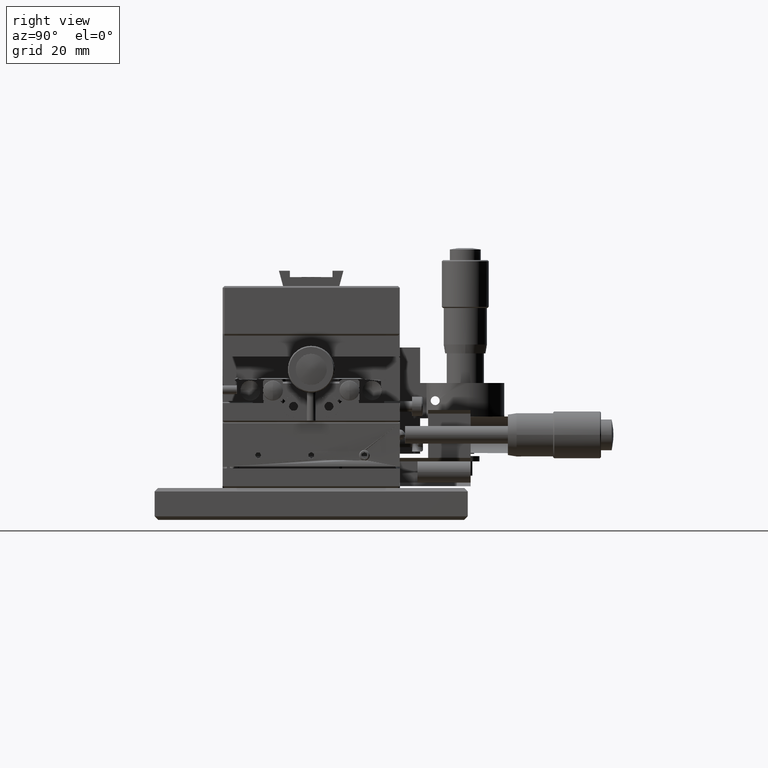
[diagram: clean part render]
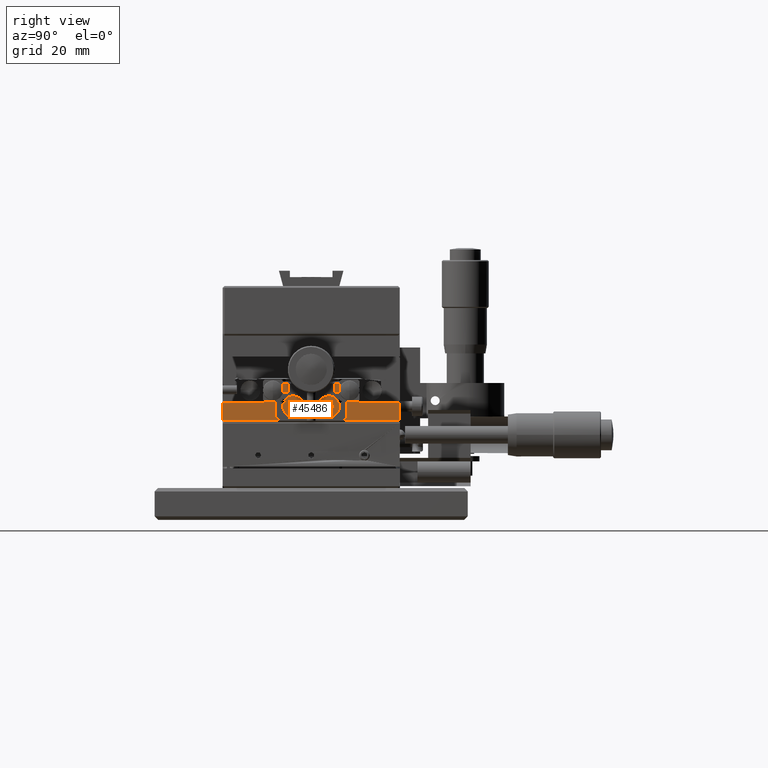
[diagram: same view with one face highlighted and labeled with its STEP entity id]
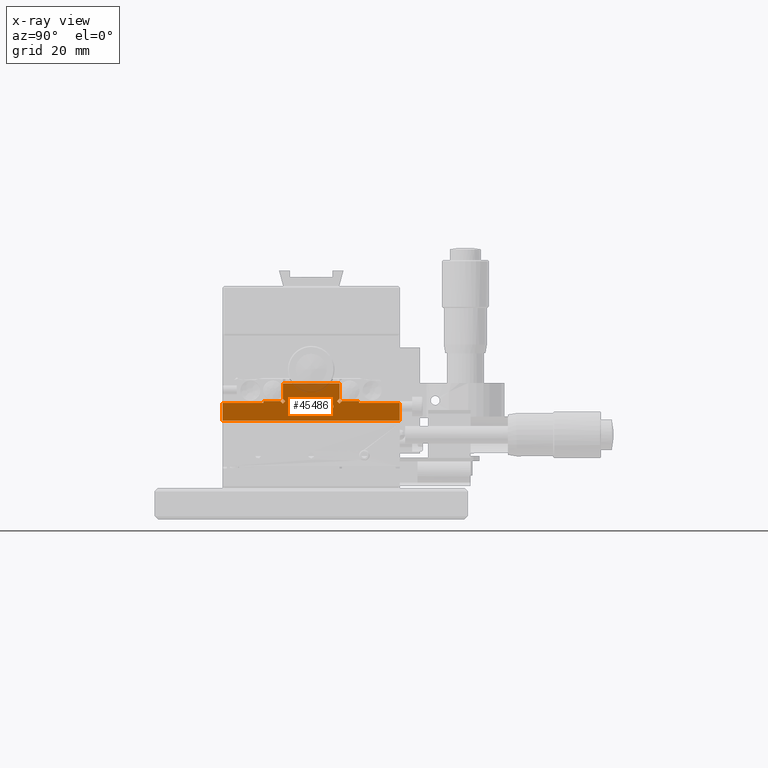
[diagram: x-ray of the same camera — body ghosted, the highlighted face saturated]
A machine part, right view. The second image highlights one B-rep face of the part: STEP entity #45486.
The next image is the same camera in x-ray: the body ghosted, the highlighted face saturated — about 6% of this face is hidden behind the body in this view.
In plain terms, the highlighted face is a freeform B-spline surface patch.
Its self-contained STEP definition (entity closure, byte-faithful):
#106 = CARTESIAN_POINT ( 'NONE',  ( 35.41923232115939868, -7.499282571865950153, 10.82812786181560050 ) ) ;
#119 = CARTESIAN_POINT ( 'NONE',  ( 35.41923232115939157, 1.738659286976996121, 10.58372311367197405 ) ) ;
#184 = CARTESIAN_POINT ( 'NONE',  ( 35.41923232115940579, -7.658430343128220130, 8.328127861815604049 ) ) ;
#359 = VERTEX_POINT ( 'NONE', #18244 ) ;
#800 = VERTEX_POINT ( 'NONE', #28666 ) ;
#803 = CARTESIAN_POINT ( 'NONE',  ( 35.41923232115941289, -7.076244450230027461, 8.401722155623858157 ) ) ;
#824 = CARTESIAN_POINT ( 'NONE',  ( 35.41923232115939868, -27.49928257186599723, 16.07812786181559872 ) ) ;
#894 = B_SPLINE_CURVE_WITH_KNOTS ( 'NONE', 1,
 ( #8955, #38469 ),
 .UNSPECIFIED., .F., .F.,
 ( 2, 2 ),
 ( 0.000000000000000000, 1.000000000000000000 ),
 .UNSPECIFIED. ) ;
#1035 = CARTESIAN_POINT ( 'NONE',  ( 35.41923232115939157, -6.676254989908567694, 10.52292401281021483 ) ) ;
#1053 = FACE_BOUND ( 'NONE', #37351, .T. ) ;
#1520 = EDGE_CURVE ( 'NONE', #35143, #35050, #40960, .T. ) ;
#2000 = CARTESIAN_POINT ( 'NONE',  ( 35.41923232115940579, 3.646563383602762887, 9.078115267141624756 ) ) ;
#2328 = CARTESIAN_POINT ( 'NONE',  ( 35.41923232115939868, -8.261340712992335966, 10.58372311370705177 ) ) ;
#2461 = CARTESIAN_POINT ( 'NONE',  ( 35.41923232115940579, 3.225132452989587062, 10.60340250617885616 ) ) ;
#2553 = CARTESIAN_POINT ( 'NONE',  ( 35.41923232115940579, -8.444078716027636489, 10.40115545059457958 ) ) ;
#2769 = VERTEX_POINT ( 'NONE', #4588 ) ;
#2783 = CARTESIAN_POINT ( 'NONE',  ( 35.41923232115940579, -8.738375440060137223, 9.381857384693326196 ) ) ;
#2922 = CARTESIAN_POINT ( 'NONE',  ( 35.41923232115939868, 3.120982298955335299, 8.479210904561897522 ) ) ;
#2930 = ORIENTED_EDGE ( 'NONE', *, *, #37316, .F. ) ;
#2985 = CARTESIAN_POINT ( 'NONE',  ( 35.41923232115939868, 5.500717428134049847, 16.07812786181559872 ) ) ;
#3132 = ORIENTED_EDGE ( 'NONE', *, *, #36155, .F. ) ;
#3323 = CARTESIAN_POINT ( 'NONE',  ( 35.41923232115939868, 6.500717428134049847, 5.578127861815599609 ) ) ;
#3401 = CARTESIAN_POINT ( 'NONE',  ( 35.41923232115939868, 1.311482124216087453, 9.192499961446900514 ) ) ;
#3468 = CARTESIAN_POINT ( 'NONE',  ( 35.41923232115939157, -8.669432750579039393, 9.138027785345336440 ) ) ;
#3591 = B_SPLINE_CURVE_WITH_KNOTS ( 'NONE', 1,
 ( #38369, #2985 ),
 .UNSPECIFIED., .F., .F.,
 ( 2, 2 ),
 ( -1.000000000000000000, 0.000000000000000000 ),
 .UNSPECIFIED. ) ;
#3619 = CARTESIAN_POINT ( 'NONE',  ( 35.41923232115941289, -7.020714457408012699, 10.73304951950429320 ) ) ;
#3631 = CARTESIAN_POINT ( 'NONE',  ( 35.41923232115940579, 1.354871472668067733, 10.07814045649536183 ) ) ;
#4081 = CARTESIAN_POINT ( 'NONE',  ( 35.41923232115939157, -6.329132393151446045, 10.01822793828443636 ) ) ;
#4096 = CARTESIAN_POINT ( 'NONE',  ( 35.41923232115939868, 2.341569656877263927, 8.328127861815602273 ) ) ;
#4229 = B_SPLINE_CURVE_WITH_KNOTS ( 'NONE', 1,
 ( #21274, #46393 ),
 .UNSPECIFIED., .F., .F.,
 ( 2, 2 ),
 ( 0.000000000000000000, 1.000000000000000000 ),
 .UNSPECIFIED. ) ;
#4277 = ORIENTED_EDGE ( 'NONE', *, *, #15784, .F. ) ;
#4559 = CARTESIAN_POINT ( 'NONE',  ( 35.41923232115940579, -7.113577302265685631, 8.388923148005030583 ) ) ;
#4588 = CARTESIAN_POINT ( 'NONE',  ( 35.41923232115939868, -7.499282571865950153, 10.82812786181560050 ) ) ;
#4589 = EDGE_CURVE ( 'NONE', #15859, #17163, #28766, .T. ) ;
#4691 = VERTEX_POINT ( 'NONE', #23889 ) ;
#4733 = ORIENTED_EDGE ( 'NONE', *, *, #33176, .F. ) ;
#5258 = CARTESIAN_POINT ( 'NONE',  ( 35.41923232115939868, 11.00071742813402054, 10.57812786181559872 ) ) ;
#5594 = CARTESIAN_POINT ( 'NONE',  ( 35.41923232115939868, 5.500717428134049847, 16.07812786181559872 ) ) ;
#5749 = CARTESIAN_POINT ( 'NONE',  ( 35.41923232115939868, 3.600825231898339140, 8.981586063020079891 ) ) ;
#5841 = CARTESIAN_POINT ( 'NONE',  ( 35.41923232115939868, -7.939382648336563264, 10.74827804052710611 ) ) ;
#5984 = CARTESIAN_POINT ( 'NONE',  ( 35.41923232115941289, 3.506312693687311466, 10.34018598927083055 ) ) ;
#6077 = CARTESIAN_POINT ( 'NONE',  ( 35.41923232115939157, -8.749210061976700814, 9.736705780390504827 ) ) ;
#6212 = CARTESIAN_POINT ( 'NONE',  ( 35.41923232115939868, 2.500717428134044962, 10.82812786181560050 ) ) ;
#6301 = CARTESIAN_POINT ( 'NONE',  ( 35.41923232115939868, -8.645128527339176472, 10.07814045648702717 ) ) ;
#6662 = CARTESIAN_POINT ( 'NONE',  ( 35.41923232115940579, 3.628812648584546885, 9.039137149472146859 ) ) ;
#6792 = B_SPLINE_CURVE_WITH_KNOTS ( 'NONE', 3,
 ( #24585, #32061, #11217, #36293 ),
 .UNSPECIFIED., .F., .F.,
 ( 4, 4 ),
 ( -1.000000000000000000, -0.000000000000000000 ),
 .UNSPECIFIED. ) ;
#7075 = EDGE_CURVE ( 'NONE', #359, #44568, #18520, .T. ) ;
#7106 = CARTESIAN_POINT ( 'NONE',  ( 35.41923232115939868, -27.49928257186595104, 5.578127861815599609 ) ) ;
#7126 = CARTESIAN_POINT ( 'NONE',  ( 35.41923232115939868, -6.353436616400943926, 9.078115267133943789 ) ) ;
#7336 = CARTESIAN_POINT ( 'NONE',  ( 35.41923232115939868, -11.49928257186589953, 5.578127861815599609 ) ) ;
#7358 = CARTESIAN_POINT ( 'NONE',  ( 35.41923232115939157, -6.493687306331045406, 10.34018598927586474 ) ) ;
#7379 = CARTESIAN_POINT ( 'NONE',  ( 35.41923232115939868, 22.50071742813399567, 5.578127861815589839 ) ) ;
#7433 = CARTESIAN_POINT ( 'NONE',  ( 35.41923232115939868, -8.322310153824419743, 8.633331710822499616 ) ) ;
#7596 = CARTESIAN_POINT ( 'NONE',  ( 35.41923232115939868, -6.399174768111996592, 8.981586062998673015 ) ) ;
#7611 = CARTESIAN_POINT ( 'NONE',  ( 35.41923232115939868, 1.401800470892460293, 8.957862990997881525 ) ) ;
#7831 = CARTESIAN_POINT ( 'NONE',  ( 35.41923232115939868, -6.249355081760533892, 9.419549943237353062 ) ) ;
#8086 = CARTESIAN_POINT ( 'NONE',  ( 35.41923232115939868, 22.50071742813399567, 16.07812786181559872 ) ) ;
#8184 = EDGE_CURVE ( 'NONE', #44864, #18097, #16612, .T. ) ;
#8561 = B_SPLINE_CURVE_WITH_KNOTS ( 'NONE', 1,
 ( #9925, #12765 ),
 .UNSPECIFIED., .F., .F.,
 ( 2, 2 ),
 ( -1.000000000000000000, 0.000000000000000000 ),
 .UNSPECIFIED. ) ;
#8642 = CARTESIAN_POINT ( 'NONE',  ( 35.41923232115939868, -27.49928257186595104, 5.578127861815599609 ) ) ;
#8955 = CARTESIAN_POINT ( 'NONE',  ( 35.41923232115939868, 11.00071742813402054, 10.57812786181559872 ) ) ;
#9480 = CARTESIAN_POINT ( 'NONE',  ( 35.41923232115939868, 3.750644918249799176, 9.419549943197155883 ) ) ;
#9570 = CARTESIAN_POINT ( 'NONE',  ( 35.41923232115939868, -8.524557204267061650, 10.30254289862509509 ) ) ;
#9707 = CARTESIAN_POINT ( 'NONE',  ( 35.41923232115940579, 2.813237995047067397, 10.79887298725827449 ) ) ;
#9798 = CARTESIAN_POINT ( 'NONE',  ( 35.41923232115939868, -7.884987841463832581, 10.76733257562612778 ) ) ;
#9925 = CARTESIAN_POINT ( 'NONE',  ( 35.41923232115939868, -15.99928257186594749, 10.57812786181559872 ) ) ;
#9993 = CARTESIAN_POINT ( 'NONE',  ( 35.41923232115939868, 22.50071742813404896, 10.57812786181559872 ) ) ;
#10125 = EDGE_CURVE ( 'NONE', #40461, #37578, #8561, .T. ) ;
#10185 = CARTESIAN_POINT ( 'NONE',  ( 35.41923232115941289, 2.022149313676101734, 8.423206204126890029 ) ) ;
#10412 = ORIENTED_EDGE ( 'NONE', *, *, #32504, .F. ) ;
#10413 = CARTESIAN_POINT ( 'NONE',  ( 35.41923232115939868, 1.261624559944387380, 9.381857384676633771 ) ) ;
#10633 = CARTESIAN_POINT ( 'NONE',  ( 35.41923232115939868, -7.302851625209658692, 8.339098439774595306 ) ) ;
#10861 = CARTESIAN_POINT ( 'NONE',  ( 35.41923232115939157, -6.260189703667267125, 9.774398338940473607 ) ) ;
#11098 = CARTESIAN_POINT ( 'NONE',  ( 35.41923232115939868, -6.344351807364209783, 9.099582722771888399 ) ) ;
#11112 = CARTESIAN_POINT ( 'NONE',  ( 35.41923232115939157, 1.400609624377413320, 10.17466966062731792 ) ) ;
#11174 = CARTESIAN_POINT ( 'NONE',  ( 35.41923232115939868, -8.223697596739571125, 8.552853217459500001 ) ) ;
#11217 = CARTESIAN_POINT ( 'NONE',  ( 35.41923232115939868, 5.972121948925063428, 10.84242560142005019 ) ) ;
#11338 = CARTESIAN_POINT ( 'NONE',  ( 35.41923232115939868, -6.371187351422110012, 9.039137149458365883 ) ) ;
#12765 = CARTESIAN_POINT ( 'NONE',  ( 35.41923232115939868, -15.99928257186599900, 11.07812786181560050 ) ) ;
#12776 = CARTESIAN_POINT ( 'NONE',  ( 35.41923232115940579, 3.445513572286114545, 8.755100273031359848 ) ) ;
#13077 = VERTEX_POINT ( 'NONE', #46151 ) ;
#13232 = CARTESIAN_POINT ( 'NONE',  ( 35.41923232115939868, 3.039708134709556919, 10.70622308804164646 ) ) ;
#13317 = CARTESIAN_POINT ( 'NONE',  ( 35.41923232115940579, -8.627377792324550043, 10.11711857415455995 ) ) ;
#13451 = CARTESIAN_POINT ( 'NONE',  ( 35.41923232115939868, 3.677140128829899712, 10.00112300055074499 ) ) ;
#13739 = CARTESIAN_POINT ( 'NONE',  ( 35.41923232115939868, -9.792175790679419123, 11.07812786181560050 ) ) ;
#13787 = CARTESIAN_POINT ( 'NONE',  ( 35.41923232115939868, -10.49928257186600078, 10.37102108062900108 ) ) ;
#13799 = B_SPLINE_CURVE_WITH_KNOTS ( 'NONE', 3,
 ( #20060, #21893, #35948, #25176, #39719, #20964, #17910, #42782, #119, #21661, #35485, #11112, #18387, #3631, #24707, #39013, #36187, #35255, #10413, #18153, #3401, #32190, #28925, #7611, #14395, #43249, #31969, #42322, #46313, #21427, #10185, #14867, #4096, #32421 ),
 .UNSPECIFIED., .F., .F.,
 ( 4, 1, 1, 2, 2, 2, 1, 1, 2, 2, 2, 1, 1, 2, 2, 2, 1, 1, 2, 2, 4 ),
 ( -1.000000000000000000, -0.9374999999999997780, -0.9062499999999997780, -0.8906249999999996669, -0.8749999999999996669, -0.7500000000000015543, -0.6875000000000024425, -0.6562500000000028866, -0.6406250000000025535, -0.6250000000000022204, -0.5000000000000014433, -0.4375000000000009992, -0.4062500000000007772, -0.3906250000000014433, -0.3750000000000019984, -0.2499999999999998890, -0.1874999999999987788, -0.1562499999999985567, -0.1406249999999983347, -0.1249999999999982236, -0.000000000000000000 ),
 .UNSPECIFIED. ) ;
#13814 = CARTESIAN_POINT ( 'NONE',  ( 35.41923232115939868, 5.500717428134049847, 10.37102108062900108 ) ) ;
#14232 = CARTESIAN_POINT ( 'NONE',  ( 35.41923232115940579, -8.598199529113252026, 8.957862991005779207 ) ) ;
#14289 = ORIENTED_EDGE ( 'NONE', *, *, #8184, .F. ) ;
#14383 = CARTESIAN_POINT ( 'NONE',  ( 35.41923232115939157, -7.340134800608900001, 10.82812786181559517 ) ) ;
#14395 = CARTESIAN_POINT ( 'NONE',  ( 35.41923232115939868, 1.495122162593977899, 8.816069734357496301 ) ) ;
#14460 = CARTESIAN_POINT ( 'NONE',  ( 35.41923232115939157, -8.504877837398389318, 8.816069734352073084 ) ) ;
#14498 = CARTESIAN_POINT ( 'NONE',  ( 35.41923232115939868, -10.49928257186600078, 11.78523464300210044 ) ) ;
#14635 = FACE_OUTER_BOUND ( 'NONE', #26664, .T. ) ;
#14692 = EDGE_CURVE ( 'NONE', #31257, #39233, #17221, .T. ) ;
#14732 = CARTESIAN_POINT ( 'NONE',  ( 35.41923232115939868, 4.793610646947500165, 11.07812786181560050 ) ) ;
#14867 = CARTESIAN_POINT ( 'NONE',  ( 35.41923232115941289, 2.188196861226500367, 8.357382736372924725 ) ) ;
#15027 = CARTESIAN_POINT ( 'NONE',  ( 35.41923232115939868, -10.49928257186600078, 11.78523464300210044 ) ) ;
#15784 = EDGE_CURVE ( 'NONE', #18097, #17409, #894, .T. ) ;
#15837 = EDGE_LOOP ( 'NONE', ( #25946, #30800 ) ) ;
#15859 = VERTEX_POINT ( 'NONE', #46227 ) ;
#16109 = CARTESIAN_POINT ( 'NONE',  ( 35.41923232115939868, -10.49928257186600078, 11.78523464300210044 ) ) ;
#16275 = CARTESIAN_POINT ( 'NONE',  ( 35.41923232115939157, 3.750753683076100575, 9.657416821124765960 ) ) ;
#16404 = CARTESIAN_POINT ( 'NONE',  ( 35.41923232115939868, 22.50071742813404896, 10.57812786181559872 ) ) ;
#16510 = CARTESIAN_POINT ( 'NONE',  ( 35.41923232115939868, 2.886422697732197840, 8.388923148005032360 ) ) ;
#16534 = CARTESIAN_POINT ( 'NONE',  ( 35.41923232115939868, -15.99928257186599900, 11.07812786181560050 ) ) ;
#16612 = B_SPLINE_CURVE_WITH_KNOTS ( 'NONE', 1,
 ( #30331, #27289 ),
 .UNSPECIFIED., .F., .F.,
 ( 2, 2 ),
 ( 0.000000000000000000, 1.000000000000000000 ),
 .UNSPECIFIED. ) ;
#16825 = CARTESIAN_POINT ( 'NONE',  ( 35.41923232115939868, -8.654213336367091003, 10.05667300086593841 ) ) ;
#16851 = CARTESIAN_POINT ( 'NONE',  ( 35.41923232115939868, 2.500717428134044962, 10.82812786181560050 ) ) ;
#16981 = VERTEX_POINT ( 'NONE', #20790 ) ;
#17064 = CARTESIAN_POINT ( 'NONE',  ( 35.41923232115939868, -11.20638935305249895, 11.07812786181560050 ) ) ;
#17163 = VERTEX_POINT ( 'NONE', #27250 ) ;
#17221 = B_SPLINE_CURVE_WITH_KNOTS ( 'NONE', 1,
 ( #7336, #7106 ),
 .UNSPECIFIED., .F., .F.,
 ( 2, 2 ),
 ( 0.6799999999999999378, 1.000000000000000000 ),
 .UNSPECIFIED. ) ;
#17349 = EDGE_CURVE ( 'NONE', #16981, #35050, #42689, .T. ) ;
#17409 = VERTEX_POINT ( 'NONE', #16404 ) ;
#17544 = CARTESIAN_POINT ( 'NONE',  ( 35.41923232115939868, -10.02787805107493213, 11.31383012221109574 ) ) ;
#17572 = VERTEX_POINT ( 'NONE', #26676 ) ;
#17575 = EDGE_CURVE ( 'NONE', #39233, #41138, #30372, .T. ) ;
#17619 = ORIENTED_EDGE ( 'NONE', *, *, #14692, .F. ) ;
#17895 = CARTESIAN_POINT ( 'NONE',  ( 35.41923232115939868, -7.186762004958090699, 10.79887298725827094 ) ) ;
#17910 = CARTESIAN_POINT ( 'NONE',  ( 35.41923232115940579, 2.060617351662556107, 10.74827804052677038 ) ) ;
#18013 = CARTESIAN_POINT ( 'NONE',  ( 35.41923232115939868, 5.265015167738500423, 11.54953238260658921 ) ) ;
#18097 = VERTEX_POINT ( 'NONE', #5258 ) ;
#18153 = CARTESIAN_POINT ( 'NONE',  ( 35.41923232115939157, 1.293637940528613584, 9.248794809126078320 ) ) ;
#18244 = CARTESIAN_POINT ( 'NONE',  ( 35.41923232115939868, -11.20638935305249895, 11.07812786181560050 ) ) ;
#18372 = B_SPLINE_CURVE_WITH_KNOTS ( 'NONE', 3,
 ( #24095, #45227, #34861, #41476, #9798, #38394, #5841, #20126, #2328, #2553, #9570, #34407, #13317, #6301, #16825, #38168, #6077, #31121, #2783, #21489, #43307, #25710, #3468, #14232, #14460, #7433, #11174, #18453, #28522, #42619, #25475, #39076, #184, #28984 ),
 .UNSPECIFIED., .F., .F.,
 ( 4, 1, 1, 2, 2, 2, 1, 1, 2, 2, 2, 1, 1, 2, 2, 2, 1, 1, 2, 2, 4 ),
 ( -1.000000000000000000, -0.9374999999999994449, -0.9062499999999994449, -0.8906249999999996669, -0.8750000000000000000, -0.7500000000000071054, -0.6875000000000111022, -0.6562500000000133227, -0.6406250000000140998, -0.6250000000000148770, -0.5000000000000131006, -0.4375000000000128786, -0.4062500000000121014, -0.3906250000000114353, -0.3750000000000108802, -0.2500000000000062172, -0.1875000000000038858, -0.1562500000000021094, -0.1406250000000015543, -0.1250000000000009992, -0.000000000000000000 ),
 .UNSPECIFIED. ) ;
#18387 = CARTESIAN_POINT ( 'NONE',  ( 35.41923232115940579, 1.372622207688471985, 10.11711857416946891 ) ) ;
#18423 = B_SPLINE_SURFACE_WITH_KNOTS ( 'NONE', 1, 1, ( 
 ( #824, #8086 ),
 ( #21899, #7379 ) ),
 .UNSPECIFIED., .F., .F., .F.,
 ( 2, 2 ),
 ( 2, 2 ),
 ( 0.000000000000000000, 1.000000000000000000 ),
 ( 0.000000000000000000, 1.000000000000000000 ),
 .UNSPECIFIED. ) ;
#18453 = CARTESIAN_POINT ( 'NONE',  ( 35.41923232115940579, -8.095824361702646854, 8.478020049072476638 ) ) ;
#18520 = B_SPLINE_CURVE_WITH_KNOTS ( 'NONE', 3,
 ( #17064, #41714, #31589, #45931 ),
 .UNSPECIFIED., .F., .F.,
 ( 4, 4 ),
 ( -1.000000000000000000, -0.000000000000000000 ),
 .UNSPECIFIED. ) ;
#19557 = ORIENTED_EDGE ( 'NONE', *, *, #42033, .F. ) ;
#19600 = ORIENTED_EDGE ( 'NONE', *, *, #10125, .F. ) ;
#19885 = CARTESIAN_POINT ( 'NONE',  ( 35.41923232115939868, -7.499282571865950153, 8.328127861815598720 ) ) ;
#20060 = CARTESIAN_POINT ( 'NONE',  ( 35.41923232115939868, 2.500717428134044962, 10.82812786181560050 ) ) ;
#20126 = CARTESIAN_POINT ( 'NONE',  ( 35.41923232115941289, -8.119547442672425674, 10.67704481907537151 ) ) ;
#20790 = CARTESIAN_POINT ( 'NONE',  ( 35.41923232115939868, -10.49928257186594038, 16.07812786181559872 ) ) ;
#20964 = CARTESIAN_POINT ( 'NONE',  ( 35.41923232115940579, 2.077679306499451872, 10.75453356800730909 ) ) ;
#21274 = CARTESIAN_POINT ( 'NONE',  ( 35.41923232115939868, -27.49928257186599723, 10.57812786181559872 ) ) ;
#21427 = CARTESIAN_POINT ( 'NONE',  ( 35.41923232115940579, 2.000704836661403530, 8.432281903138919787 ) ) ;
#21489 = CARTESIAN_POINT ( 'NONE',  ( 35.41923232115939868, -8.706362059474738402, 9.248794809138574990 ) ) ;
#21537 = CARTESIAN_POINT ( 'NONE',  ( 35.41923232115939868, 6.207824209320599529, 11.07812786181560050 ) ) ;
#21647 = CARTESIAN_POINT ( 'NONE',  ( 35.41923232115939868, -6.278610300927642385, 9.265423491593580252 ) ) ;
#21655 = ORIENTED_EDGE ( 'NONE', *, *, #42015, .F. ) ;
#21661 = CARTESIAN_POINT ( 'NONE',  ( 35.41923232115939868, 1.555921283987849568, 10.40115545061218150 ) ) ;
#21879 = CARTESIAN_POINT ( 'NONE',  ( 35.41923232115939868, -6.554486427721785802, 8.755100273015044010 ) ) ;
#21893 = CARTESIAN_POINT ( 'NONE',  ( 35.41923232115939868, 2.421336771972731672, 10.82812786181559339 ) ) ;
#21899 = CARTESIAN_POINT ( 'NONE',  ( 35.41923232115939868, -27.49928257186599723, 5.578127861815589839 ) ) ;
#22111 = CARTESIAN_POINT ( 'NONE',  ( 35.41923232115940579, -6.902740782030706512, 10.67823567456075651 ) ) ;
#22201 = ORIENTED_EDGE ( 'NONE', *, *, #45219, .F. ) ;
#22263 = B_SPLINE_CURVE_WITH_KNOTS ( 'NONE', 3,
 ( #19885, #36173, #10633, #29604, #4559, #803, #25400, #22348, #39705, #21879, #32888, #7596, #11338, #7126, #11098, #21647, #7831, #43472, #10861, #28912, #25637, #35706, #4081, #32176, #7358, #1035, #40170, #22111, #36644, #25161, #3619, #17895, #14383, #106 ),
 .UNSPECIFIED., .F., .F.,
 ( 4, 1, 1, 2, 2, 2, 1, 1, 2, 2, 2, 1, 1, 2, 2, 2, 1, 1, 2, 2, 4 ),
 ( -1.000000000000000000, -0.9374999999999953371, -0.9062499999999932276, -0.8906249999999926725, -0.8749999999999922284, -0.7499999999999893419, -0.6874999999999880096, -0.6562499999999876765, -0.6406249999999871214, -0.6249999999999864553, -0.4999999999999832356, -0.4374999999999809042, -0.4062499999999804601, -0.3906249999999809042, -0.3749999999999813483, -0.2499999999999875655, -0.1874999999999902300, -0.1562499999999914513, -0.1406249999999924505, -0.1249999999999934497, -0.000000000000000000 ),
 .UNSPECIFIED. ) ;
#22348 = CARTESIAN_POINT ( 'NONE',  ( 35.41923232115940579, -6.879017701069110480, 8.479210904554406625 ) ) ;
#23167 = CARTESIAN_POINT ( 'NONE',  ( 35.41923232115939868, -27.49928257186595104, 5.578127861815599609 ) ) ;
#23777 = CARTESIAN_POINT ( 'NONE',  ( 35.41923232115939868, 3.739810296323685890, 9.774398338975711198 ) ) ;
#23889 = CARTESIAN_POINT ( 'NONE',  ( 35.41923232115939868, 2.500717428134044962, 8.328127861815598720 ) ) ;
#24008 = CARTESIAN_POINT ( 'NONE',  ( 35.41923232115938447, 2.659865199396264757, 10.82812786181559161 ) ) ;
#24095 = CARTESIAN_POINT ( 'NONE',  ( 35.41923232115939868, -7.499282571865950153, 10.82812786181560050 ) ) ;
#24438 = CARTESIAN_POINT ( 'NONE',  ( 35.41923232115939868, 6.207824209320599529, 11.07812786181560050 ) ) ;
#24582 = CARTESIAN_POINT ( 'NONE',  ( 35.41923232115939868, 5.500717428134040077, 11.78523464300210044 ) ) ;
#24583 = CARTESIAN_POINT ( 'NONE',  ( 35.41923232115939868, -9.792175790679419123, 11.07812786181560050 ) ) ;
#24585 = CARTESIAN_POINT ( 'NONE',  ( 35.41923232115939868, 5.500717428134049847, 10.37102108062900108 ) ) ;
#24707 = CARTESIAN_POINT ( 'NONE',  ( 35.41923232115939868, 1.345786663633576907, 10.05667300086281024 ) ) ;
#24893 = CARTESIAN_POINT ( 'NONE',  ( 35.41923232115939868, 11.00071742813404008, 11.07812786181560050 ) ) ;
#25161 = CARTESIAN_POINT ( 'NONE',  ( 35.41923232115939868, -6.999269980392057278, 10.72397382049174652 ) ) ;
#25176 = CARTESIAN_POINT ( 'NONE',  ( 35.41923232115940579, 2.171264023310276237, 10.78515976480951899 ) ) ;
#25400 = CARTESIAN_POINT ( 'NONE',  ( 35.41923232115939868, -7.059182495394191292, 8.407977683104203237 ) ) ;
#25475 = CARTESIAN_POINT ( 'NONE',  ( 35.41923232115939868, -7.977850686323135321, 8.423206204126863383 ) ) ;
#25637 = CARTESIAN_POINT ( 'NONE',  ( 35.41923232115939868, -6.310047267943633464, 9.963755762177486375 ) ) ;
#25710 = CARTESIAN_POINT ( 'NONE',  ( 35.41923232115939868, -8.675705272562968418, 9.155132723090494196 ) ) ;
#25946 = ORIENTED_EDGE ( 'NONE', *, *, #25966, .F. ) ;
#25966 = EDGE_CURVE ( 'NONE', #17572, #2769, #22263, .T. ) ;
#26119 = FACE_BOUND ( 'NONE', #15837, .T. ) ;
#26628 = CARTESIAN_POINT ( 'NONE',  ( 35.41923232115939868, -11.20638935305249895, 11.07812786181560050 ) ) ;
#26645 = B_SPLINE_CURVE_WITH_KNOTS ( 'NONE', 1,
 ( #37650, #26628 ),
 .UNSPECIFIED., .F., .F.,
 ( 2, 2 ),
 ( 0.000000000000000000, 1.000000000000000000 ),
 .UNSPECIFIED. ) ;
#26664 = EDGE_LOOP ( 'NONE', ( #3132, #33701, #21655, #29382, #40295, #2930, #45103, #4733, #19600, #22201, #41517, #17619, #41640, #27008, #19557, #4277, #14289, #43322, #35892, #39122 ) ) ;
#26676 = CARTESIAN_POINT ( 'NONE',  ( 35.41923232115939868, -7.499282571865950153, 8.328127861815598720 ) ) ;
#26768 = CARTESIAN_POINT ( 'NONE',  ( 35.41923232115939868, 5.500717428134049847, 16.07812786181559872 ) ) ;
#26938 = CARTESIAN_POINT ( 'NONE',  ( 35.41923232115939868, 22.50071742813409870, 5.578127861815599609 ) ) ;
#27008 = ORIENTED_EDGE ( 'NONE', *, *, #4589, .F. ) ;
#27054 = CARTESIAN_POINT ( 'NONE',  ( 35.41923232115940579, 3.707796915739476784, 9.907460914520976658 ) ) ;
#27067 = CARTESIAN_POINT ( 'NONE',  ( 35.41923232115939868, -11.49928257186589953, 5.578127861815599609 ) ) ;
#27106 = EDGE_CURVE ( 'NONE', #45635, #13077, #29392, .T. ) ;
#27138 = CARTESIAN_POINT ( 'NONE',  ( 35.41923232115939868, 5.500717428134040077, 11.78523464300210044 ) ) ;
#27250 = CARTESIAN_POINT ( 'NONE',  ( 35.41923232115939868, 6.500717428134049847, 5.578127861815599609 ) ) ;
#27289 = CARTESIAN_POINT ( 'NONE',  ( 35.41923232115939868, 11.00071742813402054, 10.57812786181559872 ) ) ;
#27292 = CARTESIAN_POINT ( 'NONE',  ( 35.41923232115939868, 2.500717428134044962, 8.328127861815598720 ) ) ;
#27514 = CARTESIAN_POINT ( 'NONE',  ( 35.41923232115939868, 3.000730019603612408, 10.72397382049294379 ) ) ;
#27753 = CARTESIAN_POINT ( 'NONE',  ( 35.41923232115939868, 3.721389699082764846, 9.265423491626370023 ) ) ;
#28109 = CARTESIAN_POINT ( 'NONE',  ( 35.41923232115939868, 4.793610646947500165, 11.07812786181560050 ) ) ;
#28265 = CARTESIAN_POINT ( 'NONE',  ( 35.41923232115939868, 22.50071742813409870, 5.578127861815599609 ) ) ;
#28522 = CARTESIAN_POINT ( 'NONE',  ( 35.41923232115939868, -8.038273278450130732, 8.450032635592991781 ) ) ;
#28666 = CARTESIAN_POINT ( 'NONE',  ( 35.41923232115939868, 5.500717428134040077, 11.78523464300210044 ) ) ;
#28766 = B_SPLINE_CURVE_WITH_KNOTS ( 'NONE', 1,
 ( #26938, #44781 ),
 .UNSPECIFIED., .F., .F.,
 ( 2, 2 ),
 ( 0.000000000000000000, 0.3199999999999999512 ),
 .UNSPECIFIED. ) ;
#28912 = CARTESIAN_POINT ( 'NONE',  ( 35.41923232115939868, -6.292203084253753964, 9.907460914494549797 ) ) ;
#28925 = CARTESIAN_POINT ( 'NONE',  ( 35.41923232115939868, 1.330567249420185671, 9.138027785346444887 ) ) ;
#28984 = CARTESIAN_POINT ( 'NONE',  ( 35.41923232115939868, -7.499282571865950153, 8.328127861815598720 ) ) ;
#29360 = EDGE_CURVE ( 'NONE', #17163, #31257, #33157, .T. ) ;
#29382 = ORIENTED_EDGE ( 'NONE', *, *, #17349, .T. ) ;
#29384 = ORIENTED_EDGE ( 'NONE', *, *, #41024, .F. ) ;
#29392 = B_SPLINE_CURVE_WITH_KNOTS ( 'NONE', 1,
 ( #28109, #13814 ),
 .UNSPECIFIED., .F., .F.,
 ( 2, 2 ),
 ( 0.000000000000000000, 1.000000000000000000 ),
 .UNSPECIFIED. ) ;
#29498 = VERTEX_POINT ( 'NONE', #16851 ) ;
#29604 = CARTESIAN_POINT ( 'NONE',  ( 35.41923232115939868, -7.169829167038427542, 8.371095958821657135 ) ) ;
#30331 = CARTESIAN_POINT ( 'NONE',  ( 35.41923232115939868, 11.00071742813404008, 11.07812786181560050 ) ) ;
#30372 = B_SPLINE_CURVE_WITH_KNOTS ( 'NONE', 1,
 ( #8642, #44511 ),
 .UNSPECIFIED., .F., .F.,
 ( 2, 2 ),
 ( -1.000000000000000000, 0.000000000000000000 ),
 .UNSPECIFIED. ) ;
#30799 = CARTESIAN_POINT ( 'NONE',  ( 35.41923232115939868, 3.655648192634517457, 9.099582722767848963 ) ) ;
#30800 = ORIENTED_EDGE ( 'NONE', *, *, #40274, .F. ) ;
#31023 = CARTESIAN_POINT ( 'NONE',  ( 35.41923232115939868, 3.097259217957206268, 10.67823567456408895 ) ) ;
#31121 = CARTESIAN_POINT ( 'NONE',  ( 35.41923232115939868, -8.749318826810654315, 9.498838902527994676 ) ) ;
#31257 = VERTEX_POINT ( 'NONE', #27067 ) ;
#31589 = CARTESIAN_POINT ( 'NONE',  ( 35.41923232115939868, -10.73498483226149780, 10.60672334102453362 ) ) ;
#31832 = CARTESIAN_POINT ( 'NONE',  ( 35.41923232115939868, -10.26358031147046290, 11.54953238260659631 ) ) ;
#31969 = CARTESIAN_POINT ( 'NONE',  ( 35.41923232115939868, 1.776302403266961649, 8.552853217454847723 ) ) ;
#32061 = CARTESIAN_POINT ( 'NONE',  ( 35.41923232115939868, 5.736419688529532657, 10.60672334102452652 ) ) ;
#32176 = CARTESIAN_POINT ( 'NONE',  ( 35.41923232115939157, -6.400365614629536459, 10.19839273263546708 ) ) ;
#32190 = CARTESIAN_POINT ( 'NONE',  ( 35.41923232115940579, 1.324294727438194430, 9.155132723086104818 ) ) ;
#32200 = B_SPLINE_CURVE_WITH_KNOTS ( 'NONE', 3,
 ( #27292, #41612, #34999, #38532, #16510, #42293, #45582, #2922, #45363, #12776, #38760, #5749, #6662, #2000, #30799, #27753, #9480, #16275, #23777, #27054, #45134, #13451, #38084, #41383, #5984, #34546, #2461, #31023, #13232, #27514, #41839, #9707, #24008, #6212 ),
 .UNSPECIFIED., .F., .F.,
 ( 4, 1, 1, 2, 2, 2, 1, 1, 2, 2, 2, 1, 1, 2, 2, 2, 1, 1, 2, 2, 4 ),
 ( -1.000000000000000000, -0.9374999999999991118, -0.9062499999999984457, -0.8906249999999982236, -0.8749999999999981126, -0.7499999999999982236, -0.6874999999999983347, -0.6562499999999980016, -0.6406249999999977796, -0.6249999999999975575, -0.4999999999999963363, -0.4374999999999956701, -0.4062499999999953371, -0.3906249999999958922, -0.3749999999999963363, -0.2499999999999956701, -0.1874999999999958922, -0.1562499999999960032, -0.1406249999999962252, -0.1249999999999964473, -0.000000000000000000 ),
 .UNSPECIFIED. ) ;
#32421 = CARTESIAN_POINT ( 'NONE',  ( 35.41923232115939868, 2.500717428134044962, 8.328127861815598720 ) ) ;
#32504 = EDGE_CURVE ( 'NONE', #29498, #4691, #13799, .T. ) ;
#32710 = EDGE_CURVE ( 'NONE', #39091, #44864, #33359, .T. ) ;
#32888 = CARTESIAN_POINT ( 'NONE',  ( 35.41923232115939868, -6.474007939495414199, 8.853712824968395623 ) ) ;
#33157 = B_SPLINE_CURVE_WITH_KNOTS ( 'NONE', 1,
 ( #3323, #34710 ),
 .UNSPECIFIED., .F., .F.,
 ( 2, 2 ),
 ( -0.6800000000000001599, -0.3200000000000000067 ),
 .UNSPECIFIED. ) ;
#33176 = EDGE_CURVE ( 'NONE', #37578, #359, #26645, .T. ) ;
#33359 = B_SPLINE_CURVE_WITH_KNOTS ( 'NONE', 1,
 ( #24438, #24893 ),
 .UNSPECIFIED., .F., .F.,
 ( 2, 2 ),
 ( 0.000000000000000000, 1.000000000000000000 ),
 .UNSPECIFIED. ) ;
#33701 = ORIENTED_EDGE ( 'NONE', *, *, #37082, .F. ) ;
#34407 = CARTESIAN_POINT ( 'NONE',  ( 35.41923232115939868, -8.599390375642833817, 10.17466966060419686 ) ) ;
#34546 = CARTESIAN_POINT ( 'NONE',  ( 35.41923232115940579, 3.323745010082215678, 10.52292401281276391 ) ) ;
#34710 = CARTESIAN_POINT ( 'NONE',  ( 35.41923232115939868, -11.49928257186589953, 5.578127861815599609 ) ) ;
#34861 = CARTESIAN_POINT ( 'NONE',  ( 35.41923232115939157, -7.695713518517239393, 10.81715728385658970 ) ) ;
#34999 = CARTESIAN_POINT ( 'NONE',  ( 35.41923232115940579, 2.697148374785908409, 8.339098439774598859 ) ) ;
#35050 = VERTEX_POINT ( 'NONE', #16109 ) ;
#35143 = VERTEX_POINT ( 'NONE', #13739 ) ;
#35255 = CARTESIAN_POINT ( 'NONE',  ( 35.41923232115939157, 1.250681173191930062, 9.498838902518503602 ) ) ;
#35485 = CARTESIAN_POINT ( 'NONE',  ( 35.41923232115939868, 1.475442795759949854, 10.30254289865587936 ) ) ;
#35585 = CARTESIAN_POINT ( 'NONE',  ( 35.41923232115939868, 5.029312907342999850, 11.31383012221108331 ) ) ;
#35706 = CARTESIAN_POINT ( 'NONE',  ( 35.41923232115939868, -6.322859871167675117, 10.00112300054129300 ) ) ;
#35740 = CARTESIAN_POINT ( 'NONE',  ( 35.41923232115939868, 11.00071742813404008, 11.07812786181560050 ) ) ;
#35892 = ORIENTED_EDGE ( 'NONE', *, *, #38245, .F. ) ;
#35948 = CARTESIAN_POINT ( 'NONE',  ( 35.41923232115939157, 2.304286481482743731, 10.81715728385659148 ) ) ;
#36007 = B_SPLINE_CURVE_WITH_KNOTS ( 'NONE', 1,
 ( #39063, #39527 ),
 .UNSPECIFIED., .F., .F.,
 ( 2, 2 ),
 ( -1.000000000000000000, 0.000000000000000000 ),
 .UNSPECIFIED. ) ;
#36155 = EDGE_CURVE ( 'NONE', #800, #45635, #41782, .T. ) ;
#36173 = CARTESIAN_POINT ( 'NONE',  ( 35.41923232115941289, -7.419901915701835549, 8.328127861815602273 ) ) ;
#36187 = CARTESIAN_POINT ( 'NONE',  ( 35.41923232115939868, 1.250789938018125991, 9.736705780409826261 ) ) ;
#36293 = CARTESIAN_POINT ( 'NONE',  ( 35.41923232115939868, 6.207824209320599529, 11.07812786181560050 ) ) ;
#36609 = B_SPLINE_CURVE_WITH_KNOTS ( 'NONE', 1,
 ( #5594, #27138 ),
 .UNSPECIFIED., .F., .F.,
 ( 2, 2 ),
 ( 0.000000000000000000, 1.000000000000000000 ),
 .UNSPECIFIED. ) ;
#36632 = CARTESIAN_POINT ( 'NONE',  ( 35.41923232115939868, -27.49928257186599723, 10.57812786181559872 ) ) ;
#36644 = CARTESIAN_POINT ( 'NONE',  ( 35.41923232115941289, -6.960291865282670187, 10.70622308803950062 ) ) ;
#37082 = EDGE_CURVE ( 'NONE', #41178, #800, #36609, .T. ) ;
#37316 = EDGE_CURVE ( 'NONE', #44568, #35143, #36007, .T. ) ;
#37351 = EDGE_LOOP ( 'NONE', ( #29384, #10412 ) ) ;
#37578 = VERTEX_POINT ( 'NONE', #16534 ) ;
#37650 = CARTESIAN_POINT ( 'NONE',  ( 35.41923232115939868, -15.99928257186599900, 11.07812786181560050 ) ) ;
#38084 = CARTESIAN_POINT ( 'NONE',  ( 35.41923232115939868, 3.670867606850900078, 10.01822793828043601 ) ) ;
#38168 = CARTESIAN_POINT ( 'NONE',  ( 35.41923232115939868, -8.719954842809491069, 9.890832231983070599 ) ) ;
#38245 = EDGE_CURVE ( 'NONE', #13077, #39091, #6792, .T. ) ;
#38369 = CARTESIAN_POINT ( 'NONE',  ( 35.41923232115939868, -10.49928257186594038, 16.07812786181559872 ) ) ;
#38394 = CARTESIAN_POINT ( 'NONE',  ( 35.41923232115940579, -7.922320693500571664, 10.75453356800729310 ) ) ;
#38469 = CARTESIAN_POINT ( 'NONE',  ( 35.41923232115939868, 22.50071742813404896, 10.57812786181559872 ) ) ;
#38532 = CARTESIAN_POINT ( 'NONE',  ( 35.41923232115939157, 2.830170832958260441, 8.371095958821657135 ) ) ;
#38760 = CARTESIAN_POINT ( 'NONE',  ( 35.41923232115939868, 3.525992060518371218, 8.853712824996918584 ) ) ;
#39013 = CARTESIAN_POINT ( 'NONE',  ( 35.41923232115939868, 1.280045157185328408, 9.890832232009172387 ) ) ;
#39063 = CARTESIAN_POINT ( 'NONE',  ( 35.41923232115939868, -10.49928257186600078, 10.37102108062900108 ) ) ;
#39076 = CARTESIAN_POINT ( 'NONE',  ( 35.41923232115939868, -7.811803138778961930, 8.357382736372914067 ) ) ;
#39091 = VERTEX_POINT ( 'NONE', #21537 ) ;
#39122 = ORIENTED_EDGE ( 'NONE', *, *, #27106, .F. ) ;
#39233 = VERTEX_POINT ( 'NONE', #23167 ) ;
#39527 = CARTESIAN_POINT ( 'NONE',  ( 35.41923232115939868, -9.792175790679419123, 11.07812786181560050 ) ) ;
#39705 = CARTESIAN_POINT ( 'NONE',  ( 35.41923232115939868, -6.737224430704839229, 8.572532609967046469 ) ) ;
#39719 = CARTESIAN_POINT ( 'NONE',  ( 35.41923232115939868, 2.115012158536185183, 10.76733257562614021 ) ) ;
#40170 = CARTESIAN_POINT ( 'NONE',  ( 35.41923232115940579, -6.774867546994309819, 10.60340250617441882 ) ) ;
#40274 = EDGE_CURVE ( 'NONE', #2769, #17572, #18372, .T. ) ;
#40295 = ORIENTED_EDGE ( 'NONE', *, *, #1520, .F. ) ;
#40461 = VERTEX_POINT ( 'NONE', #46326 ) ;
#40577 = CARTESIAN_POINT ( 'NONE',  ( 35.41923232115939868, -10.49928257186594038, 16.07812786181559872 ) ) ;
#40960 = B_SPLINE_CURVE_WITH_KNOTS ( 'NONE', 3,
 ( #24583, #17544, #31832, #14498 ),
 .UNSPECIFIED., .F., .F.,
 ( 4, 4 ),
 ( -1.000000000000000000, -0.000000000000000000 ),
 .UNSPECIFIED. ) ;
#41024 = EDGE_CURVE ( 'NONE', #4691, #29498, #32200, .T. ) ;
#41138 = VERTEX_POINT ( 'NONE', #36632 ) ;
#41178 = VERTEX_POINT ( 'NONE', #26768 ) ;
#41383 = CARTESIAN_POINT ( 'NONE',  ( 35.41923232115940579, 3.599634385351702104, 10.19839273266767954 ) ) ;
#41476 = CARTESIAN_POINT ( 'NONE',  ( 35.41923232115939157, -7.828735976689721987, 10.78515976480950123 ) ) ;
#41517 = ORIENTED_EDGE ( 'NONE', *, *, #17575, .F. ) ;
#41612 = CARTESIAN_POINT ( 'NONE',  ( 35.41923232115940579, 2.580098084295632255, 8.328127861815604049 ) ) ;
#41640 = ORIENTED_EDGE ( 'NONE', *, *, #29360, .F. ) ;
#41714 = CARTESIAN_POINT ( 'NONE',  ( 35.41923232115939868, -10.97068709265700193, 10.84242560142006262 ) ) ;
#41782 = B_SPLINE_CURVE_WITH_KNOTS ( 'NONE', 3,
 ( #24582, #18013, #35585, #14732 ),
 .UNSPECIFIED., .F., .F.,
 ( 4, 4 ),
 ( -1.000000000000000000, -0.000000000000000000 ),
 .UNSPECIFIED. ) ;
#41839 = CARTESIAN_POINT ( 'NONE',  ( 35.41923232115939868, 2.979285542591316727, 10.73304951950430564 ) ) ;
#42015 = EDGE_CURVE ( 'NONE', #16981, #41178, #3591, .T. ) ;
#42033 = EDGE_CURVE ( 'NONE', #17409, #15859, #42185, .T. ) ;
#42185 = B_SPLINE_CURVE_WITH_KNOTS ( 'NONE', 1,
 ( #9993, #28265 ),
 .UNSPECIFIED., .F., .F.,
 ( 2, 2 ),
 ( 0.000000000000000000, 1.000000000000000000 ),
 .UNSPECIFIED. ) ;
#42293 = CARTESIAN_POINT ( 'NONE',  ( 35.41923232115940579, 2.923755549768810358, 8.401722155623856381 ) ) ;
#42322 = CARTESIAN_POINT ( 'NONE',  ( 35.41923232115940579, 1.904175638302233686, 8.478020049068991426 ) ) ;
#42619 = CARTESIAN_POINT ( 'NONE',  ( 35.41923232115939157, -7.999295163340299553, 8.432281903140150803 ) ) ;
#42689 = B_SPLINE_CURVE_WITH_KNOTS ( 'NONE', 1,
 ( #40577, #15027 ),
 .UNSPECIFIED., .F., .F.,
 ( 2, 2 ),
 ( 0.000000000000000000, 1.000000000000000000 ),
 .UNSPECIFIED. ) ;
#42782 = CARTESIAN_POINT ( 'NONE',  ( 35.41923232115939868, 1.880452557334862718, 10.67704481907824743 ) ) ;
#43249 = CARTESIAN_POINT ( 'NONE',  ( 35.41923232115941289, 1.677689846179283517, 8.633331710819868832 ) ) ;
#43307 = CARTESIAN_POINT ( 'NONE',  ( 35.41923232115939868, -8.688517875786057942, 9.192499961454895896 ) ) ;
#43322 = ORIENTED_EDGE ( 'NONE', *, *, #32710, .F. ) ;
#43472 = CARTESIAN_POINT ( 'NONE',  ( 35.41923232115939157, -6.249246316918734223, 9.657416821104616744 ) ) ;
#44511 = CARTESIAN_POINT ( 'NONE',  ( 35.41923232115939868, -27.49928257186599723, 10.57812786181559872 ) ) ;
#44568 = VERTEX_POINT ( 'NONE', #13787 ) ;
#44781 = CARTESIAN_POINT ( 'NONE',  ( 35.41923232115939868, 6.500717428134049847, 5.578127861815599609 ) ) ;
#44864 = VERTEX_POINT ( 'NONE', #35740 ) ;
#45103 = ORIENTED_EDGE ( 'NONE', *, *, #7075, .F. ) ;
#45134 = CARTESIAN_POINT ( 'NONE',  ( 35.41923232115941289, 3.689952732052006468, 9.963755762194480781 ) ) ;
#45219 = EDGE_CURVE ( 'NONE', #41138, #40461, #4229, .T. ) ;
#45227 = CARTESIAN_POINT ( 'NONE',  ( 35.41923232115939868, -7.578663228027259890, 10.82812786181559339 ) ) ;
#45363 = CARTESIAN_POINT ( 'NONE',  ( 35.41923232115939868, 3.262775569279515064, 8.572532609934517822 ) ) ;
#45486 = ADVANCED_FACE ( 'NONE', ( #26119, #1053, #14635 ), #18423, .T. ) ;
#45582 = CARTESIAN_POINT ( 'NONE',  ( 35.41923232115939157, 2.940817504602782240, 8.407977683103267097 ) ) ;
#45635 = VERTEX_POINT ( 'NONE', #45891 ) ;
#45891 = CARTESIAN_POINT ( 'NONE',  ( 35.41923232115939868, 4.793610646947500165, 11.07812786181560050 ) ) ;
#45931 = CARTESIAN_POINT ( 'NONE',  ( 35.41923232115939868, -10.49928257186600078, 10.37102108062900108 ) ) ;
#46151 = CARTESIAN_POINT ( 'NONE',  ( 35.41923232115939868, 5.500717428134049847, 10.37102108062900108 ) ) ;
#46227 = CARTESIAN_POINT ( 'NONE',  ( 35.41923232115939868, 22.50071742813409870, 5.578127861815599609 ) ) ;
#46313 = CARTESIAN_POINT ( 'NONE',  ( 35.41923232115940579, 1.961726721552983221, 8.450032635590757124 ) ) ;
#46326 = CARTESIAN_POINT ( 'NONE',  ( 35.41923232115939868, -15.99928257186594749, 10.57812786181559872 ) ) ;
#46393 = CARTESIAN_POINT ( 'NONE',  ( 35.41923232115939868, -15.99928257186594749, 10.57812786181559872 ) ) ;